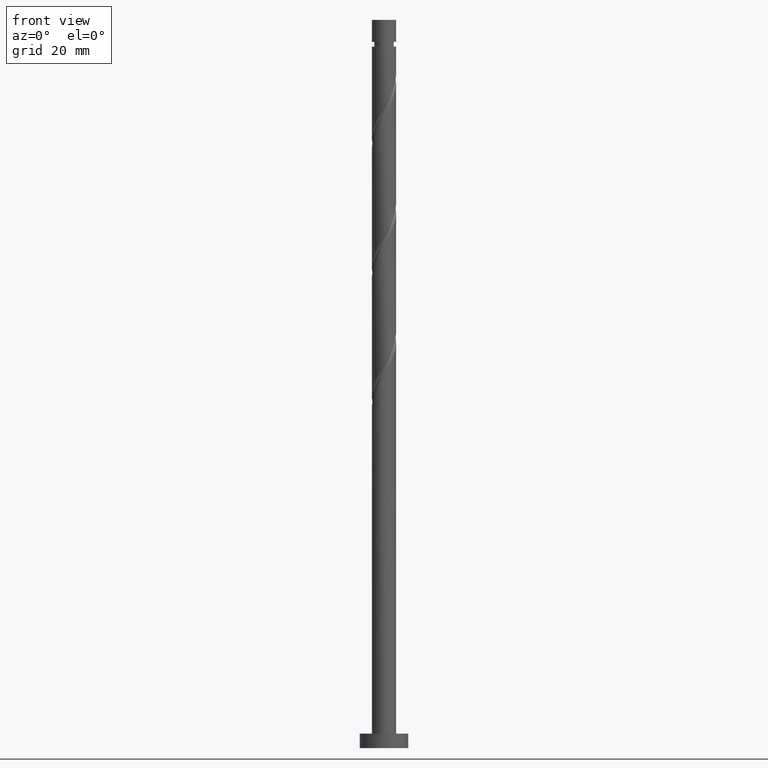
[diagram: clean part render]
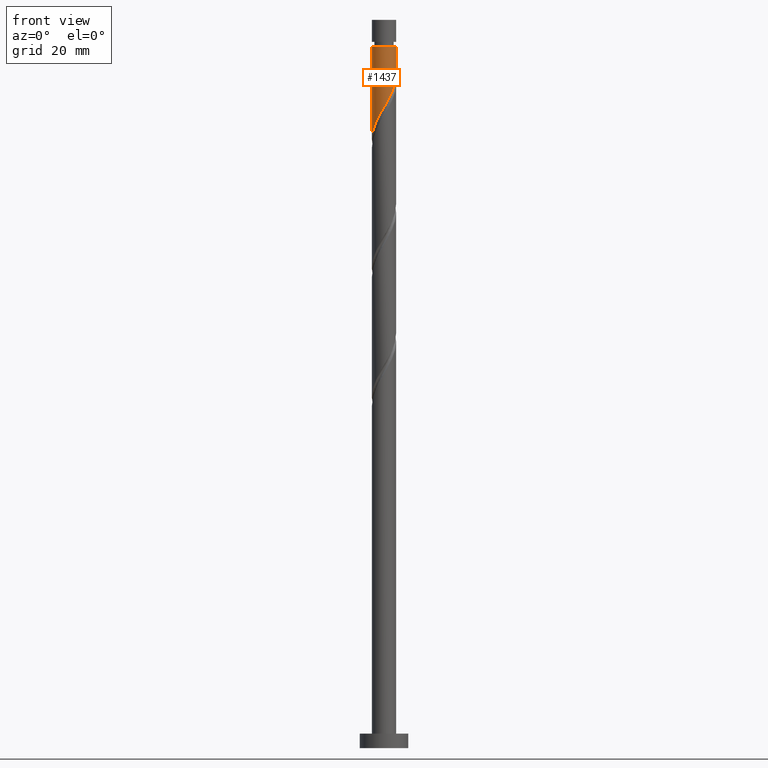
[diagram: same view with one face highlighted and labeled with its STEP entity id]
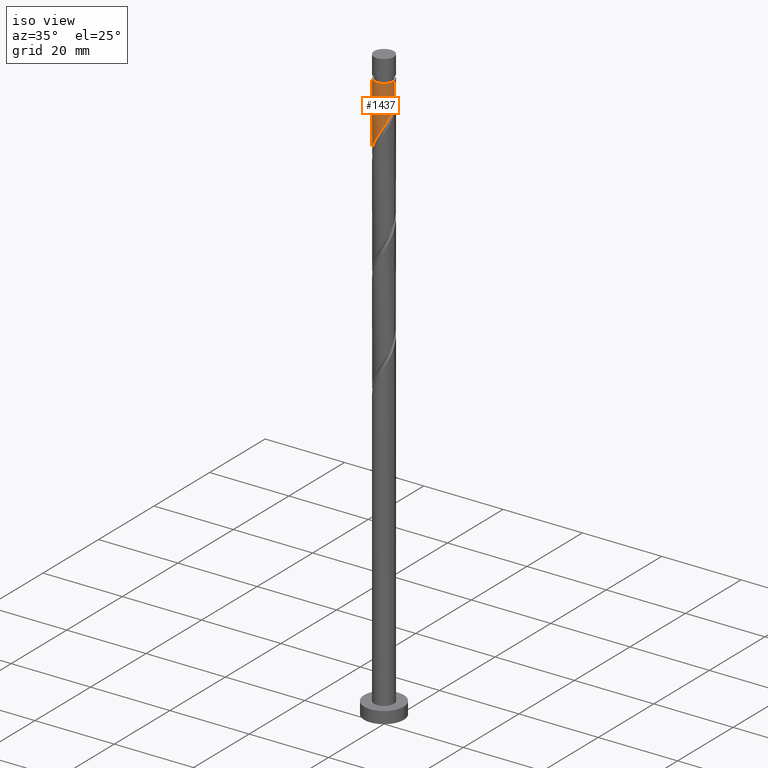
[diagram: same view with one face highlighted and labeled with its STEP entity id]
A machine part, front view. The second image highlights one B-rep face of the part: STEP entity #1437.
A second angle (iso view) of the same face is appended — the face is thin or edge-on in the first view.
In plain terms, the highlighted cylindrical surface (edge-blend (fillet) strip) has radius 2.5 mm, axis along (-0, -0, -1).
Its self-contained STEP definition (entity closure, byte-faithful):
#11 = DIRECTION ( 'NONE',  ( -1.000000000000000000, 0.000000000000000000, 0.000000000000000000 ) ) ;
#65 = EDGE_CURVE ( 'NONE', #654, #1264, #1288, .T. ) ;
#94 = CARTESIAN_POINT ( 'NONE',  ( -1.167586491630752565, -2.210597608014943649, 130.3201738873378872 ) ) ;
#101 = CARTESIAN_POINT ( 'NONE',  ( 1.810534374112176215, -1.761012923450274714, 135.7747193418833263 ) ) ;
#160 = ORIENTED_EDGE ( 'NONE', *, *, #268, .T. ) ;
#229 = CARTESIAN_POINT ( 'NONE',  ( 2.500000000000000000, -7.478410351748224240E-18, 139.0484162454266652 ) ) ;
#231 = CARTESIAN_POINT ( 'NONE',  ( 2.233329684002602455, -1.179593048026942759, 136.9868405540045160 ) ) ;
#268 = EDGE_CURVE ( 'NONE', #567, #1264, #527, .T. ) ;
#311 = DIRECTION ( 'NONE',  ( -0.000000000000000000, -0.000000000000000000, -1.000000000000000000 ) ) ;
#316 = VECTOR ( 'NONE', #311, 1000.000000000000000 ) ;
#322 = EDGE_CURVE ( 'NONE', #1330, #567, #366, .T. ) ;
#328 = CARTESIAN_POINT ( 'NONE',  ( -2.000754257700505967, -1.541487475360714621, 128.5019920691561026 ) ) ;
#336 = CARTESIAN_POINT ( 'NONE',  ( -0.1452368982656269403, -2.521528798126809967, 132.1383557055197002 ) ) ;
#350 = CARTESIAN_POINT ( 'NONE',  ( 2.495863270706175197, -0.1437585960555973208, 138.8050223721863858 ) ) ;
#364 = DIRECTION ( 'NONE',  ( -0.000000000000000000, -0.000000000000000000, -1.000000000000000000 ) ) ;
#366 = CIRCLE ( 'NONE', #1517, 2.499999999999994227 ) ;
#371 = CARTESIAN_POINT ( 'NONE',  ( -2.499999999999999556, 2.998842551051037612E-15, 125.7150829120932940 ) ) ;
#438 = CARTESIAN_POINT ( 'NONE',  ( -2.500000000000000000, 0.000000000000000000, 150.4000000000000057 ) ) ;
#454 = CARTESIAN_POINT ( 'NONE',  ( 2.021932029057389890, -1.470302985738608958, 136.3807799479439495 ) ) ;
#460 = CARTESIAN_POINT ( 'NONE',  ( -2.499999999999994227, 0.000000000000000000, 144.8656284327924482 ) ) ;
#464 = CARTESIAN_POINT ( 'NONE',  ( 2.500000000000000000, -7.478410351748224240E-18, 139.0484162454266652 ) ) ;
#472 = CARTESIAN_POINT ( 'NONE',  ( 2.500000000000000000, -0.07193881630956376616, 138.9263182407084400 ) ) ;
#482 = CARTESIAN_POINT ( 'NONE',  ( -2.177375558832922664, -1.228428132125366279, 127.8959314630954935 ) ) ;
#527 = LINE ( 'NONE', #438, #316 ) ;
#567 = VERTEX_POINT ( 'NONE', #460 ) ;
#617 = CARTESIAN_POINT ( 'NONE',  ( -0.8497505388409957172, -2.378471201873189500, 130.9262344933984537 ) ) ;
#654 = VERTEX_POINT ( 'NONE', #229 ) ;
#705 = ORIENTED_EDGE ( 'NONE', *, *, #742, .F. ) ;
#712 = ORIENTED_EDGE ( 'NONE', *, *, #322, .T. ) ;
#742 = EDGE_CURVE ( 'NONE', #1330, #654, #1001, .T. ) ;
#749 = CARTESIAN_POINT ( 'NONE',  ( -2.435264748179748917, -0.5652305779706338074, 126.6838102509742185 ) ) ;
#802 = DIRECTION ( 'NONE',  ( -0.000000000000000000, -0.000000000000000000, -1.000000000000000000 ) ) ;
#806 = DIRECTION ( 'NONE',  ( -0.000000000000000000, -0.000000000000000000, -1.000000000000000000 ) ) ;
#840 = CARTESIAN_POINT ( 'NONE',  ( -2.499999999999999556, -0.2863223184628067575, 126.2010428650645935 ) ) ;
#866 = CARTESIAN_POINT ( 'NONE',  ( 0.2129030368922517069, -2.490917962696093557, 132.7444163115803235 ) ) ;
#915 = VECTOR ( 'NONE', #364, 1000.000000000000000 ) ;
#954 = DIRECTION ( 'NONE',  ( -1.000000000000000000, 0.000000000000000000, 0.000000000000000000 ) ) ;
#988 = CARTESIAN_POINT ( 'NONE',  ( 0.9060516544719195986, -2.330036566114080276, 133.9565375237015132 ) ) ;
#996 = CARTESIAN_POINT ( 'NONE',  ( -2.353996859965338917, -0.9153687888900168268, 127.2898708570348560 ) ) ;
#1001 = LINE ( 'NONE', #1514, #915 ) ;
#1014 = EDGE_LOOP ( 'NONE', ( #705, #712, #160, #1338 ) ) ;
#1047 = CARTESIAN_POINT ( 'NONE',  ( 2.499999999999994227, 3.061616997868380183E-16, 144.8656284327924482 ) ) ;
#1122 = CARTESIAN_POINT ( 'NONE',  ( 1.241060336893708094, -2.199766004962785182, 134.5625981297621081 ) ) ;
#1129 = CARTESIAN_POINT ( 'NONE',  ( -1.485422444420509969, -2.042724014156698242, 129.7141132812772639 ) ) ;
#1248 = CARTESIAN_POINT ( 'NONE',  ( 2.475193905018188367, -0.5026095591624450964, 138.1989617661257341 ) ) ;
#1255 = CARTESIAN_POINT ( 'NONE',  ( 1.525797355502941821, -1.980389464206530281, 135.1686587358227030 ) ) ;
#1264 = VERTEX_POINT ( 'NONE', #371 ) ;
#1288 =( BOUNDED_CURVE ( )  B_SPLINE_CURVE ( 2, ( #464, #472, #350, #1248, #1483, #231, #454, #101, #1255, #1122, #988, #1500, #866, #336, #1377, #617, #94, #1129, #1637, #328, #482, #996, #749, #840, #1353 ),
 .UNSPECIFIED., .F., .T. ) 
 B_SPLINE_CURVE_WITH_KNOTS ( ( 3, 2, 2, 2, 2, 2, 2, 2, 2, 2, 2, 2, 3 ),
 ( 0.3045252162417515507, 0.3068181818181818232, 0.3181818181818181768, 0.3295454545454545303, 0.3409090909090908839, 0.3522727272727272929, 0.3636363636363636465, 0.3750000000000000000, 0.3863636363636363535, 0.3977272727272727071, 0.4090909090909091161, 0.4204545454545454697, 0.4295252162417513286 ),
 .UNSPECIFIED. ) 
 CURVE ( )  GEOMETRIC_REPRESENTATION_ITEM ( )  RATIONAL_B_SPLINE_CURVE ( ( 0.9061101570135584593, 0.9072237824201405676, 0.9090909090909178314, 0.8998376744372202918, 0.9090909090909178314, 0.8998376744372202918, 0.9090909090909178314, 0.8998376744372202918, 0.9090909090909178314, 0.8998376744372202918, 0.9090909090909178314, 0.8998376744372202918, 0.9090909090909178314, 0.8998376744372202918, 0.9090909090909178314, 0.8998376744372202918, 0.9090909090909178314, 0.8998376744372202918, 0.9090909090909178314, 0.8998376744372202918, 0.9090909090909178314, 0.8998376744372202918, 0.9090909090909178314, 0.9017048011079977776, 0.9061101570135582373 ) ) 
 REPRESENTATION_ITEM ( '' )  );
#1305 = FACE_OUTER_BOUND ( 'NONE', #1014, .T. ) ;
#1309 = CARTESIAN_POINT ( 'NONE',  ( 0.000000000000000000, 0.000000000000000000, 144.8656284327924482 ) ) ;
#1318 = AXIS2_PLACEMENT_3D ( 'NONE', #1333, #802, #11 ) ;
#1330 = VERTEX_POINT ( 'NONE', #1047 ) ;
#1333 = CARTESIAN_POINT ( 'NONE',  ( 0.000000000000000000, 0.000000000000000000, 150.4000000000000057 ) ) ;
#1338 = ORIENTED_EDGE ( 'NONE', *, *, #65, .F. ) ;
#1353 = CARTESIAN_POINT ( 'NONE',  ( -2.499999999999999556, 2.998842551051037612E-15, 125.7150829120933082 ) ) ;
#1377 = CARTESIAN_POINT ( 'NONE',  ( -0.4974937185533113704, -2.449999999999999734, 131.5322950994591054 ) ) ;
#1437 = ADVANCED_FACE ( 'NONE', ( #1305 ), #1552, .T. ) ;
#1483 = CARTESIAN_POINT ( 'NONE',  ( 2.354261794510395411, -0.8411013035946941496, 137.5929011600651677 ) ) ;
#1500 = CARTESIAN_POINT ( 'NONE',  ( 0.5710429720501314366, -2.460307127265375815, 133.3504769176409184 ) ) ;
#1514 = CARTESIAN_POINT ( 'NONE',  ( 2.500000000000000000, 3.061616997868383141E-16, 150.4000000000000057 ) ) ;
#1517 = AXIS2_PLACEMENT_3D ( 'NONE', #1309, #806, #954 ) ;
#1552 = CYLINDRICAL_SURFACE ( 'NONE', #1318, 2.500000000000000000 ) ;
#1637 = CARTESIAN_POINT ( 'NONE',  ( -1.743088351060508412, -1.792105744758706098, 129.1080526752167259 ) ) ;